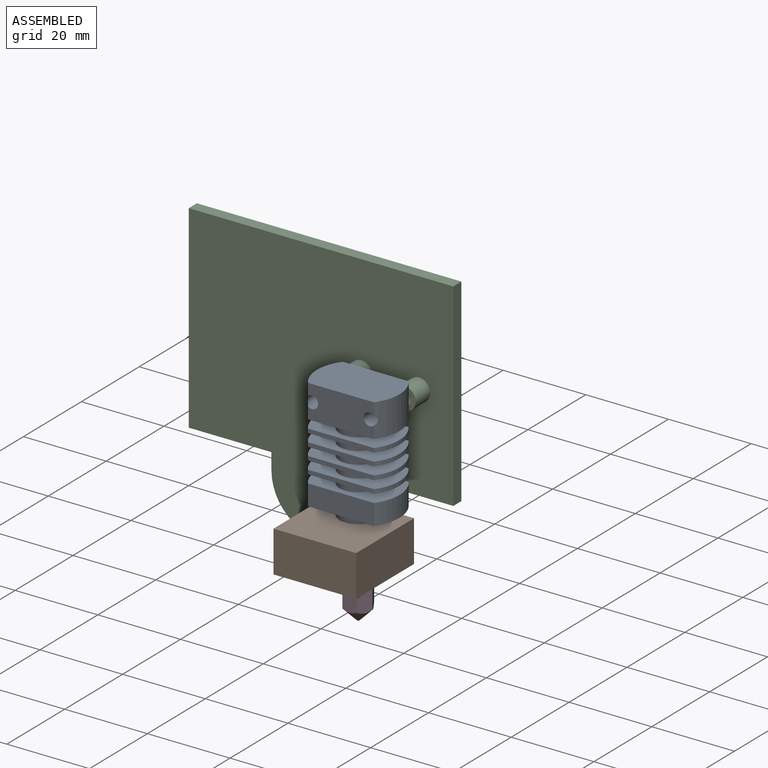
[diagram: assembled view]
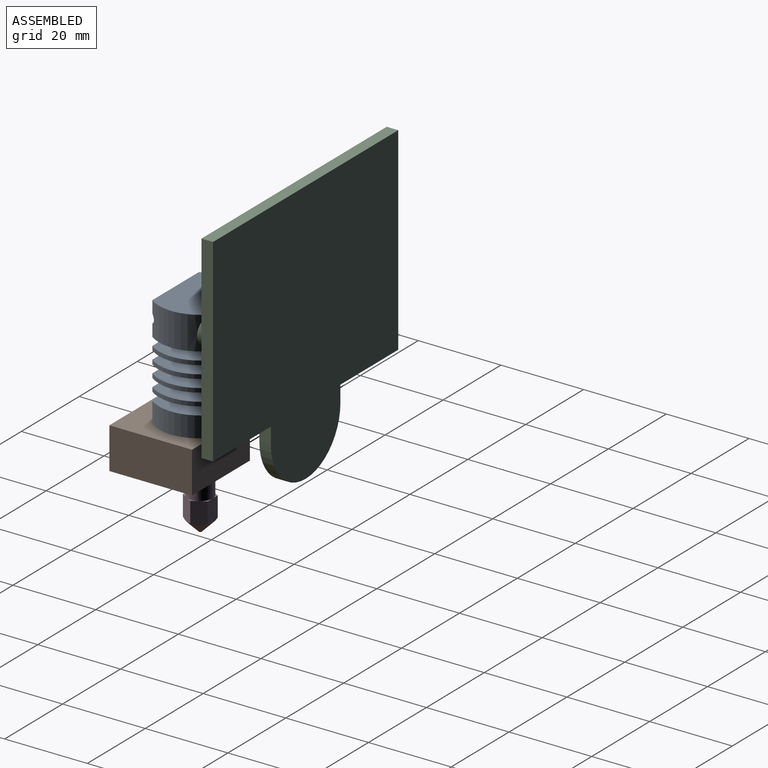
[diagram: assembled view, second angle]
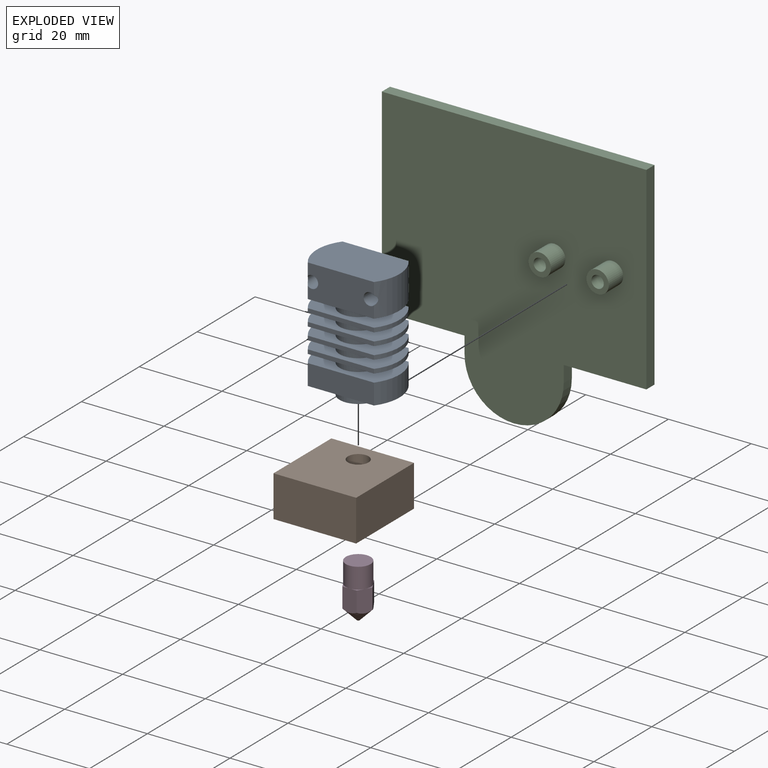
[diagram: exploded view]
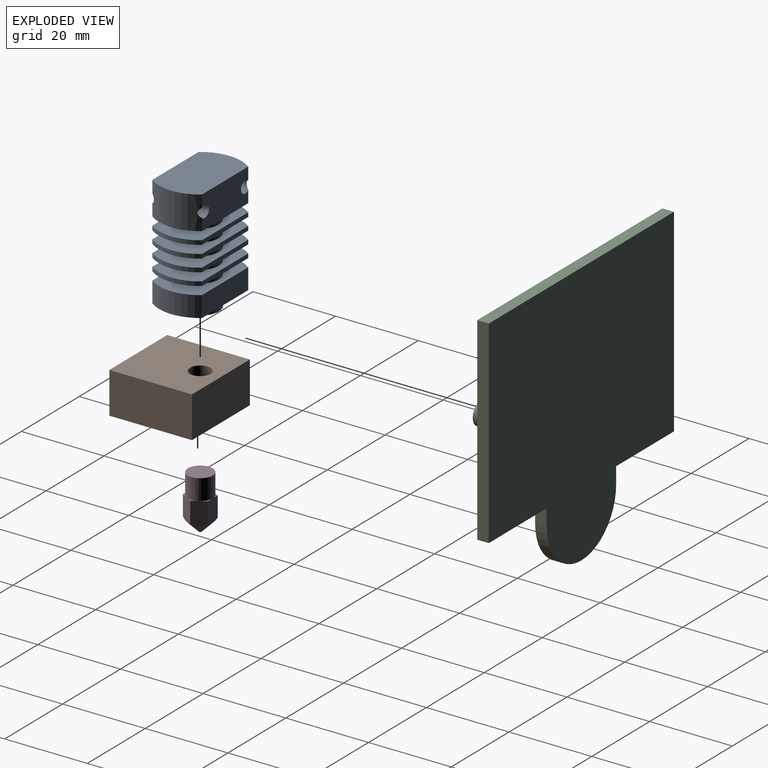
[diagram: exploded view, second angle]
ASSEMBLY  parts=4 mates=3
PART A: 45 faces, bbox 20x12x29 mm
  f0: plane 16x8mm, normal (0,-1,0), area 115.4mm2, adj f2,f38,f39,f40,f43,f44
  f1: plane 16x8mm, normal (0,1,0), area 115.4mm2, adj f2,f38,f39,f40,f43,f44
  f2: cylinder r=10mm len=12mm, axis (0,0,-1), area 100.2mm2, adj f0,f1,f38,f40,f44
  f3: plane 16x5mm, normal (0,-1,0), area 80mm2, adj f5,f6,f7,f8
  f4: plane 16x5mm, normal (0,1,0), area 80mm2, adj f5,f6,f7,f8
  f5: cylinder r=10mm len=12mm, axis (0,0,-1), area 64.4mm2, adj f3,f4,f7,f8
  f6: cylinder r=10mm len=12mm, axis (0,0,-1), area 64.4mm2, adj f3,f4,f7,f8
  f7: plane 20x12mm, normal (0,0,-1), area 161.1mm2, adj f3,f4,f5,f6,f41
  f8: plane 20x12mm, normal (0,0,1), area 161.1mm2, adj f3,f4,f5,f6,f30
  f9: cylinder r=4.5mm len=9mm, axis (0,0,-1), area 56.5mm2, adj f10,f18
  f10: plane 20x12mm, normal (0,0,-1), area 161.1mm2, adj f9,f12,f13,f14,f15
  f11: plane 20x12mm, normal (0,0,1), area 161.1mm2, adj f12,f13,f14,f15,f37
  f12: plane 16x1mm, normal (0,-1,0), area 16mm2, adj f10,f11,f14,f15
  f13: plane 16x1mm, normal (0,1,0), area 16mm2, adj f10,f11,f14,f15
  f14: cylinder r=10mm len=12mm, axis (0,0,-1), area 12.9mm2, adj f10,f11,f12,f13
  f15: cylinder r=10mm len=12mm, axis (0,0,-1), area 12.9mm2, adj f10,f11,f12,f13
  f16: cylinder r=4.5mm len=9mm, axis (0,0,-1), area 56.5mm2, adj f17,f25
  f17: plane 20x12mm, normal (0,0,-1), area 161.1mm2, adj f16,f19,f20,f21,f22
  f18: plane 20x12mm, normal (0,0,1), area 161.1mm2, adj f9,f19,f20,f21,f22
  f19: plane 16x1mm, normal (0,-1,0), area 16mm2, adj f17,f18,f21,f22
  f20: plane 16x1mm, normal (0,1,0), area 16mm2, adj f17,f18,f21,f22
  f21: cylinder r=10mm len=12mm, axis (0,0,-1), area 12.9mm2, adj f17,f18,f19,f20
  f22: cylinder r=10mm len=12mm, axis (0,0,-1), area 12.9mm2, adj f17,f18,f19,f20
  f23: cylinder r=4.5mm len=9mm, axis (0,0,-1), area 56.5mm2, adj f24,f32
  f24: plane 20x12mm, normal (0,0,-1), area 161.1mm2, adj f23,f26,f27,f28,f29
  f25: plane 20x12mm, normal (0,0,1), area 161.1mm2, adj f16,f26,f27,f28,f29
  f26: plane 16x1mm, normal (0,-1,0), area 16mm2, adj f24,f25,f28,f29
  f27: plane 16x1mm, normal (0,1,0), area 16mm2, adj f24,f25,f28,f29
  f28: cylinder r=10mm len=12mm, axis (0,0,-1), area 12.9mm2, adj f24,f25,f26,f27
  f29: cylinder r=10mm len=12mm, axis (0,0,-1), area 12.9mm2, adj f24,f25,f26,f27
  f30: cylinder r=4.5mm len=9mm, axis (0,0,-1), area 56.5mm2, adj f8,f31
  f31: plane 20x12mm, normal (0,0,-1), area 161.1mm2, adj f30,f33,f34,f35,f36
  f32: plane 20x12mm, normal (0,0,1), area 161.1mm2, adj f23,f33,f34,f35,f36
  f33: plane 16x1mm, normal (0,-1,0), area 16mm2, adj f31,f32,f35,f36
  f34: plane 16x1mm, normal (0,1,0), area 16mm2, adj f31,f32,f35,f36
  f35: cylinder r=10mm len=12mm, axis (0,0,-1), area 12.9mm2, adj f31,f32,f33,f34
  f36: cylinder r=10mm len=12mm, axis (0,0,-1), area 12.9mm2, adj f31,f32,f33,f34
  f37: cylinder r=4.5mm len=9mm, axis (0,0,-1), area 56.5mm2, adj f11,f38
  f38: plane 20x12mm, normal (0,0,-1), area 161.1mm2, adj f0,f1,f2,f37,f39
  f39: cylinder r=10mm len=12mm, axis (0,0,-1), area 100.2mm2, adj f0,f1,f38,f40,f43
  f40: plane 20x12mm, normal (0,0,1), area 224.7mm2, adj f0,f1,f2,f39
  f41: cylinder r=4.5mm len=9mm, axis (0,0,-1), area 56.5mm2, adj f7,f42
  f42: plane 9x9mm, normal (0,0,-1), area 63.6mm2, adj f41
  f43: cylinder r=1.5mm len=12mm, axis (0,-1,0), area 110.7mm2, adj f0,f1,f39
  f44: cylinder r=1.5mm len=12mm, axis (0,-1,0), area 110.7mm2, adj f0,f1,f2
PART B: 7 faces, bbox 20x20x10 mm
  f0: plane 20x10mm, normal (0,-1,0), area 200mm2, adj f1,f3,f4,f5
  f1: plane 20x10mm, normal (1,0,0), area 200mm2, adj f0,f2,f4,f5
  f2: plane 20x10mm, normal (0,1,0), area 200mm2, adj f1,f3,f4,f5
  f3: plane 20x10mm, normal (-1,0,0), area 200mm2, adj f0,f2,f4,f5
  f4: plane 20x20mm, normal (0,0,1), area 380.4mm2, adj f0,f1,f2,f3,f6
  f5: plane 20x20mm, normal (0,0,-1), area 380.4mm2, adj f0,f1,f2,f3,f6
  f6: cylinder r=2.5mm len=10mm, axis (0,0,1), area 157.1mm2, adj f4,f5
PART C: 18 faces, bbox 64x7.8x64 mm
  f0: cylinder r=1.5mm len=5mm, axis (0,1,0), area 47.1mm2, adj f2,f17
  f1: cylinder r=2.7mm len=5.4mm, axis (0,1,0), area 84.8mm2, adj f2,f13
  f2: plane 5.4x5.4mm, normal (0,-1,0), area 15.8mm2, adj f0,f1
  f3: plane 3x3mm, normal (0,-1,0), area 7.1mm2, adj f16
  f4: cylinder r=12mm len=24mm, axis (0,-1,0), area 105.9mm2, adj f5,f11,f12,f13
  f5: plane 3.96x2.8mm, normal (1,0,0), area 11.1mm2, adj f4,f6,f12,f13
  f6: plane 20x2.8mm, normal (0,0,-1), area 56mm2, adj f5,f7,f12,f13
  f7: plane 48x2.8mm, normal (1,0,0), area 134.4mm2, adj f6,f8,f12,f13
  f8: plane 64x2.8mm, normal (0,0,1), area 179.2mm2, adj f7,f9,f12,f13
  f9: plane 48x2.8mm, normal (-1,0,0), area 134.4mm2, adj f8,f10,f12,f13
  f10: plane 20x2.8mm, normal (0,0,-1), area 56mm2, adj f9,f11,f12,f13
  f11: plane 3.91x2.8mm, normal (-1,0,0), area 10.9mm2, adj f4,f10,f12,f13
  f12: plane 64x64mm, normal (0,1,0), area 3394.2mm2, adj f4,f5,f6,f7,f8,f9,f10,f11
  f13: plane 64x64mm, normal (0,-1,0), area 3348.4mm2, adj f1,f4,f5,f6,f7,f8,f9,f10
  f14: plane 5.4x5.4mm, normal (0,-1,0), area 15.8mm2, adj f15,f16
  f15: cylinder r=2.7mm len=5.4mm, axis (0,1,0), area 84.8mm2, adj f13,f14
  f16: cylinder r=1.5mm len=5mm, axis (0,1,0), area 47.1mm2, adj f3,f14
  f17: plane 3x3mm, normal (0,-1,0), area 7.1mm2, adj f0
PART D: 16 faces, bbox 6.9x6.9x13 mm
  f0: plane 2.6x1.5mm, normal (0,0,-1), area 0.5mm2, adj f5,f10,f14
  f1: plane 3x0.87mm, normal (0,0,-1), area 0.5mm2, adj f9,f10,f14
  f2: plane 2.6x1.5mm, normal (0,0,-1), area 0.5mm2, adj f8,f9,f14
  f3: plane 2.6x1.5mm, normal (0,0,-1), area 0.5mm2, adj f7,f8,f14
  f4: plane 3x0.87mm, normal (0,0,-1), area 0.5mm2, adj f6,f7,f14
  f5: plane 5.32x3.47mm, normal (1,0,0), area 17.9mm2, adj f0,f6,f10,f11,f12
  f6: plane 5.32x3mm, normal (0.5,0.87,0), area 17.9mm2, adj f4,f5,f7,f11,f12
  f7: plane 5.32x3mm, normal (-0.5,0.87,0), area 17.9mm2, adj f3,f4,f6,f8,f12
  f8: plane 5.32x3.47mm, normal (-1,0,0), area 17.9mm2, adj f2,f3,f7,f9,f12
  f9: plane 5.32x3mm, normal (-0.5,-0.87,0), area 17.9mm2, adj f1,f2,f8,f10,f12
  f10: plane 5.32x3mm, normal (0.5,-0.87,0), area 17.9mm2, adj f0,f1,f5,f9,f12
  f11: plane 2.6x1.5mm, normal (0,0,-1), area 0.5mm2, adj f5,f6,f14
  f12: cone r=0.32mm half-angle=45deg, axis (0,0,-1), area 43.6mm2, adj f5,f6,f7,f8,f9,f10,f13
  f13: plane 0.63x0.63mm, normal (0,0,1), area 0.3mm2, adj f12
  f14: cylinder r=3mm len=6mm, axis (0,0,1), area 94.2mm2, adj f0,f1,f2,f3,f4,f11,f15
  f15: plane 6x6mm, normal (0,0,-1), area 28.3mm2, adj f14
PLACE A t=(16.7,-11,-23.8)mm
PLACE B t=(16.7,-16,-35.8)mm
PLACE C at identity fixed
PLACE D rot(axis=(0.71,-0.71,0),180deg) t=(16.7,-11,-35.8)mm
MATE fastened B.f6 <-> A.f2  axis (0,0,1) through (16.7,-11,-25.8)mm
MATE fastened A.f44 <-> C.f15  axis (0,-1,0) through (23.7,-5,-0.8)mm
MATE fastened D.f12 <-> B.f6  axis (0,0,1) through (16.7,-11,-35.8)mm
